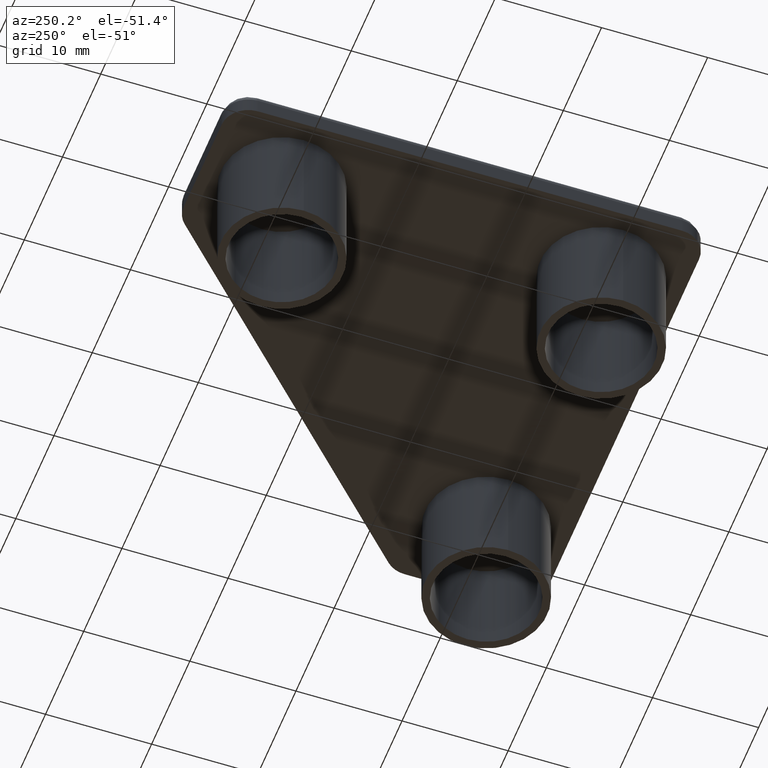
[diagram: clean part render]
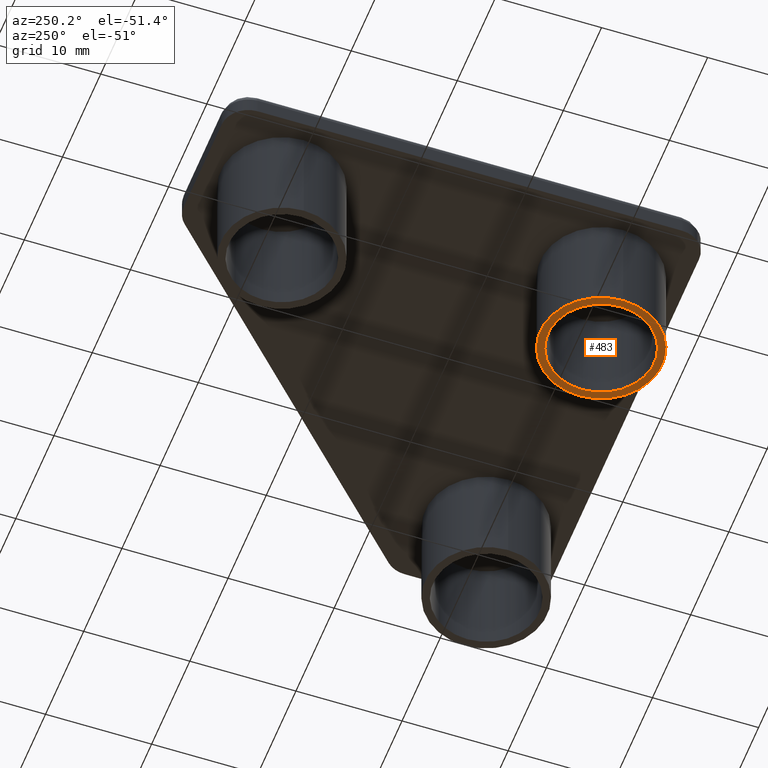
[diagram: same view with one face highlighted and labeled with its STEP entity id]
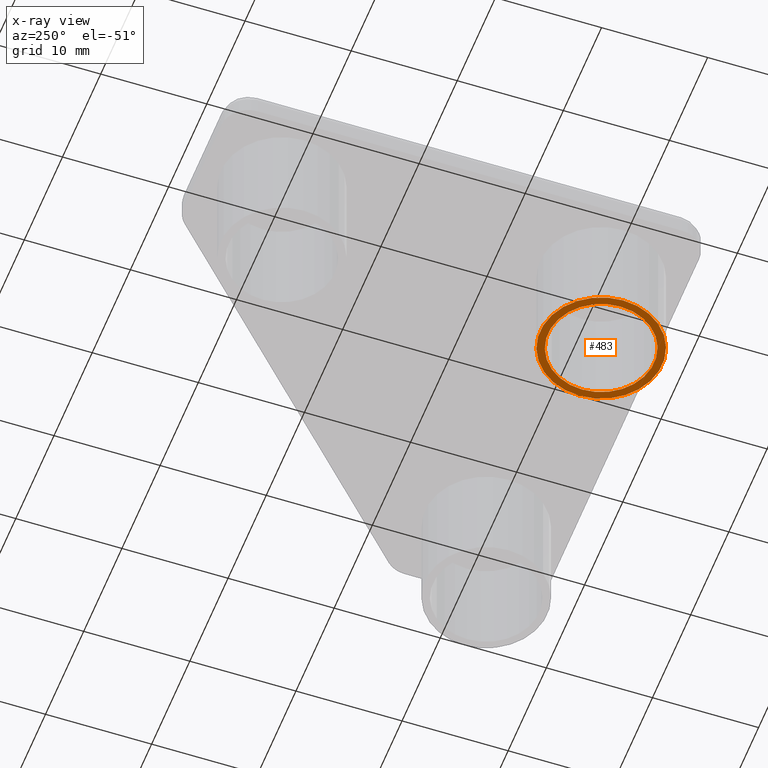
[diagram: x-ray of the same camera — body ghosted, the highlighted face saturated]
A machine part, auxiliary view. The second image highlights one B-rep face of the part: STEP entity #483.
The next image is the same camera in x-ray: the body ghosted, the highlighted face saturated — about 0% of this face is hidden behind the body in this view.
In plain terms, the highlighted planar face has unit normal (0, 0, -1).
Its self-contained STEP definition (entity closure, byte-faithful):
#41=FACE_BOUND('',#115,.T.);
#75=FACE_OUTER_BOUND('',#114,.T.);
#114=EDGE_LOOP('',(#429));
#115=EDGE_LOOP('',(#430));
#159=CIRCLE('',#544,5.749999999977);
#160=CIRCLE('',#546,4.99999999998);
#251=VERTEX_POINT('',#1076);
#252=VERTEX_POINT('',#1079);
#313=EDGE_CURVE('',#251,#251,#159,.T.);
#314=EDGE_CURVE('',#252,#252,#160,.T.);
#429=ORIENTED_EDGE('',*,*,#313,.T.);
#430=ORIENTED_EDGE('',*,*,#314,.T.);
#453=PLANE('',#547);
#483=ADVANCED_FACE('',(#75,#41),#453,.T.);
#544=AXIS2_PLACEMENT_3D('',#1077,#689,#690);
#546=AXIS2_PLACEMENT_3D('',#1080,#693,#694);
#547=AXIS2_PLACEMENT_3D('',#1081,#695,#696);
#689=DIRECTION('center_axis',(0.,0.,-1.));
#690=DIRECTION('ref_axis',(1.,0.,0.));
#693=DIRECTION('center_axis',(0.,0.,1.));
#694=DIRECTION('ref_axis',(1.,0.,0.));
#695=DIRECTION('center_axis',(0.,0.,-1.));
#696=DIRECTION('ref_axis',(-1.,0.,0.));
#1076=CARTESIAN_POINT('',(-20.7999777967921,7.44995599997037,-9.99999999995998));
#1077=CARTESIAN_POINT('Origin',(-15.0499777968151,7.44995599997037,-9.99999999995998));
#1079=CARTESIAN_POINT('',(-20.0499777967951,7.44995599997037,-9.99999999995998));
#1080=CARTESIAN_POINT('Origin',(-15.0499777968151,7.44995599997037,-9.99999999995998));
#1081=CARTESIAN_POINT('Origin',(-21.9499825212551,14.3499607244104,-9.99999999995998));